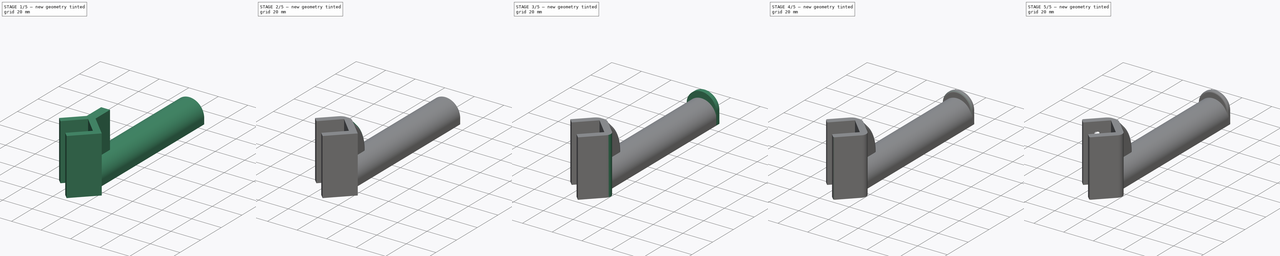
[diagram: build sequence overview — one tinted view per stage of 5, left to right]
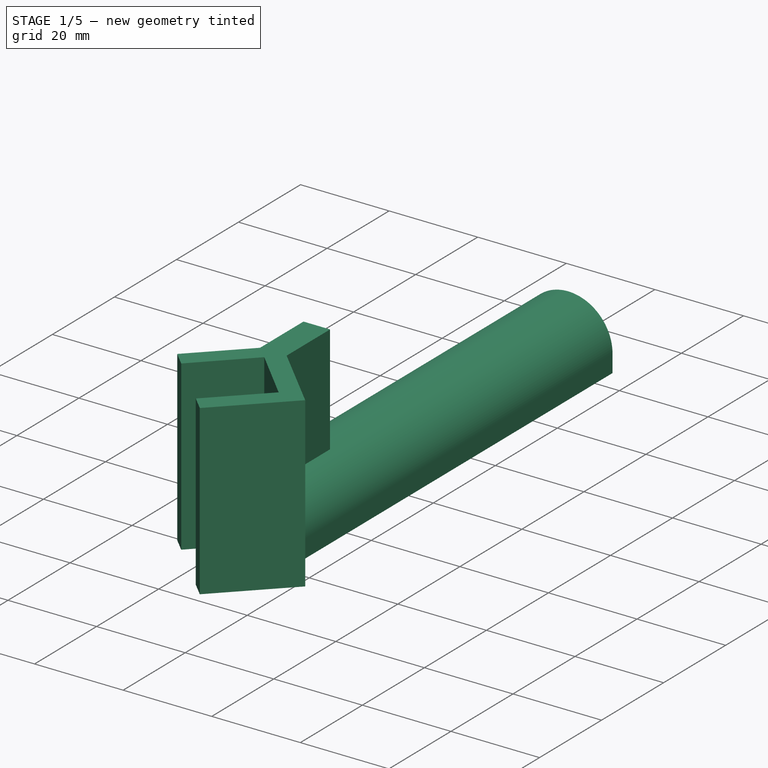
[diagram: stage 1 of 5 — iso view after this stage's code; geometry added in this stage tinted green]
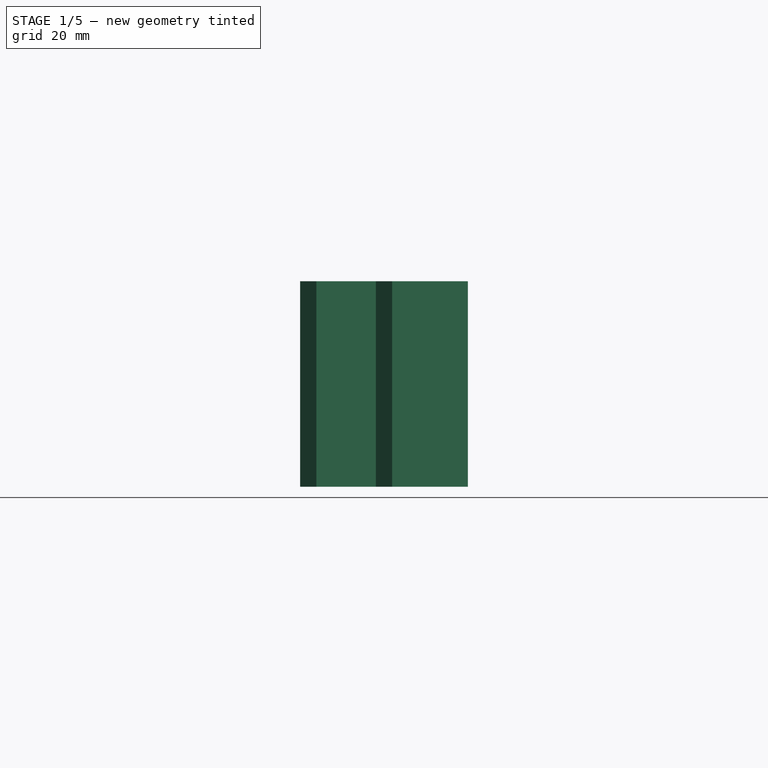
[diagram: stage 1 of 5 — front view after this stage's code; geometry added in this stage tinted green]
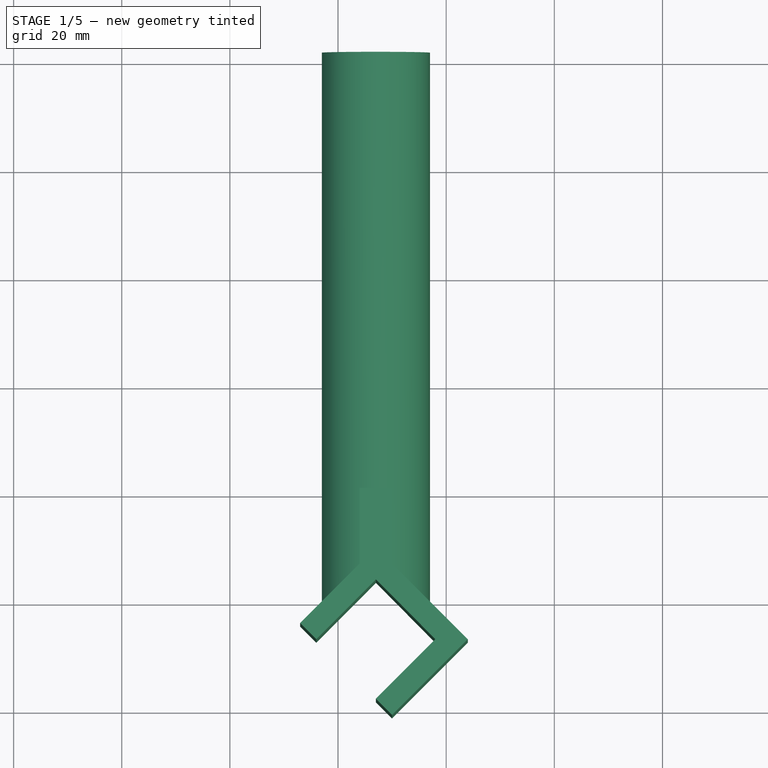
[diagram: stage 1 of 5 — top view after this stage's code; geometry added in this stage tinted green]
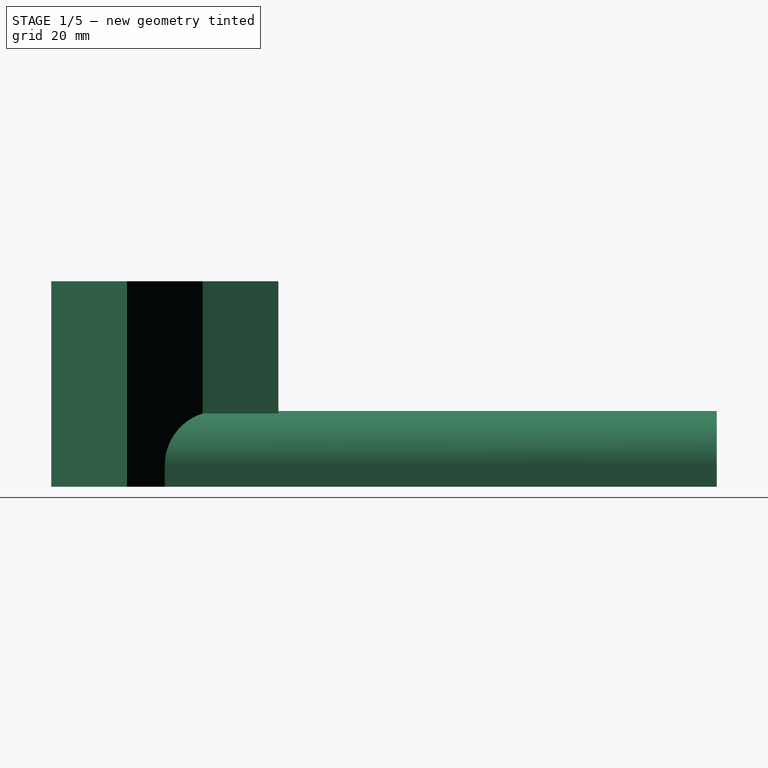
[diagram: stage 1 of 5 — right view after this stage's code; geometry added in this stage tinted green]
FCSTD DOCUMENT  (FreeCAD 0.15R4671 (Git))
Label: SpoolHanger
License: All rights reserved
LicenseURL: http://en.wikipedia.org/wiki/All_rights_reserved
objects: Sketcher::SketchObject×9, PartDesign::Fillet×7, PartDesign::Pocket×6, Part::Feature×3, PartDesign::Pad×2, PartDesign::Chamfer×1
note: 36 computed .brp shape members not serialized (recipe doc carries the construction recipe); baked Part::Feature solids carry a one-line shape summary decoded from their .brp

FEATURE [Part::Feature] Part__Feature  label="BottomCorner_Tall"
  shape: bbox 73 x 73 x 88 mm, 83 faces (baked)
FEATURE [Sketcher::SketchObject] Sketch
  sketch-geometry (11):
    g0: LineSegment StartX=18 StartY=-7 StartZ=0 EndX=7 EndY=4.07071 EndZ=0
    g1: LineSegment StartX=7 StartY=4.07071 StartZ=0 EndX=-4 EndY=-7 EndZ=0
    g2: LineSegment StartX=7 StartY=-18 StartZ=0 EndX=18 EndY=-7 EndZ=0
    g3: LineSegment StartX=-3 StartY=102.071 StartZ=0 EndX=17 EndY=102.071 EndZ=0
    g4: LineSegment StartX=17 StartY=102.071 StartZ=0 EndX=17 EndY=0 EndZ=0
    g5: LineSegment StartX=-3 StartY=0 StartZ=0 EndX=-3 EndY=102.071 EndZ=0
    g6: LineSegment StartX=17 StartY=0 StartZ=0 EndX=24 EndY=-7 EndZ=0
    g7: LineSegment StartX=24 StartY=-7 StartZ=0 EndX=10 EndY=-21 EndZ=0
    g8: LineSegment StartX=10 StartY=-21 StartZ=0 EndX=7 EndY=-18 EndZ=0
    g9: LineSegment StartX=-3 StartY=0 StartZ=0 EndX=-7 EndY=-4 EndZ=0
    g10: LineSegment StartX=-7 StartY=-4 StartZ=0 EndX=-4 EndY=-7 EndZ=0
  constraints (14):
    c: Coincident(g0,g1)
    c: Coincident(g2,g0)
    c: Coincident(g3,g4)
    c: Coincident(g5,g3)
    c: Horizontal(g3)
    c: Vertical(g4)
    c: Vertical(g5)
    c: DistanceX(g4,g5) = -20
    c: Coincident(g6,g7)
    c: Coincident(g7,g8)
    c: Coincident(g9,g10)
    c: Coincident(g4,g6)
    c: Coincident(g5,g9)
    c: DistanceY(g0,g3) = 98
FEATURE [PartDesign::Pad] Pad
  Length = 38
  Length2 = 100
  Sketch = -> Sketch
  Type = 0
FEATURE [Sketcher::SketchObject] Sketch001
  Placement = pos=(0,0,38) rot=(0,0,1;0rad)
  Support = -> Pad [Face13]
  sketch-geometry (10):
    g0: LineSegment StartX=-4 StartY=0 StartZ=0 EndX=-3 EndY=0 EndZ=0
    g1: LineSegment StartX=17 StartY=0 StartZ=0 EndX=18 EndY=0 EndZ=0
    g2: LineSegment StartX=18 StartY=0 StartZ=0 EndX=18 EndY=103 EndZ=0
    g3: LineSegment StartX=18 StartY=103 StartZ=0 EndX=-4 EndY=103 EndZ=0
    g4: LineSegment StartX=-4 StartY=103 StartZ=0 EndX=-4 EndY=0 EndZ=0
    g5: LineSegment StartX=4 StartY=7 StartZ=0 EndX=4 EndY=21 EndZ=0
    g6: LineSegment StartX=4 StartY=21 StartZ=0 EndX=10 EndY=21 EndZ=0
    g7: LineSegment StartX=10 StartY=21 StartZ=0 EndX=10 EndY=7 EndZ=0
    g8: LineSegment StartX=-3 StartY=0 StartZ=0 EndX=4 EndY=7 EndZ=0
    g9: LineSegment StartX=17 StartY=0 StartZ=0 EndX=10 EndY=7 EndZ=0
  constraints (7):
    c: Coincident(g1,g2)
    c: Coincident(g2,g3)
    c: Coincident(g3,g4)
    c: Coincident(g4,g0)
    c: Coincident(g6,g7)
    c: Coincident(g5,g8)
    c: Coincident(g7,g9)
FEATURE [PartDesign::Pocket] Pocket
  Length = 24
  Sketch = -> Sketch001
  Type = 0
FEATURE [PartDesign::Fillet] Fillet
  Base = -> Pocket [Edge3,Edge17]
  Radius = 9.99
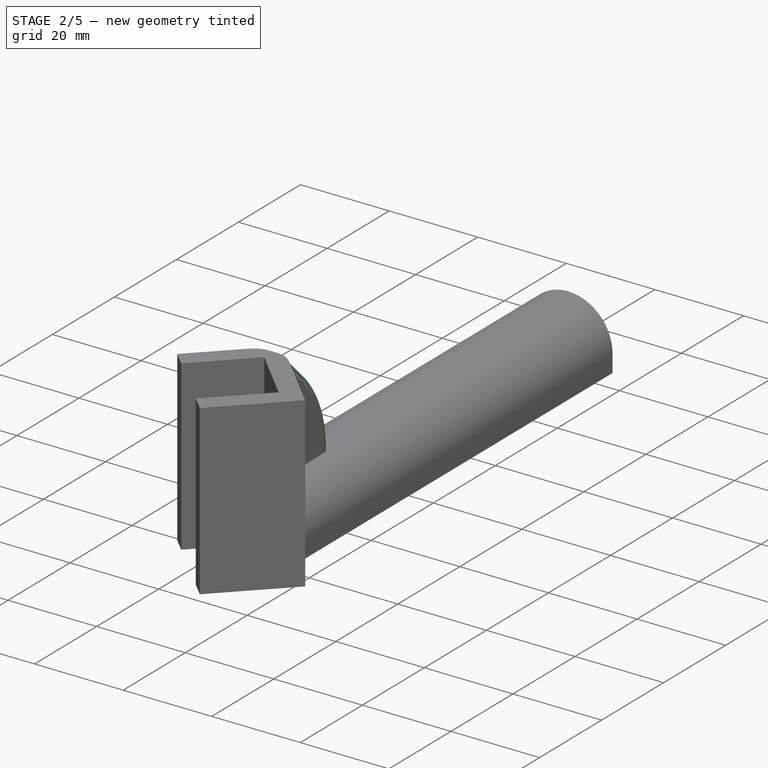
[diagram: stage 2 of 5 — iso view after this stage's code; geometry added in this stage tinted green]
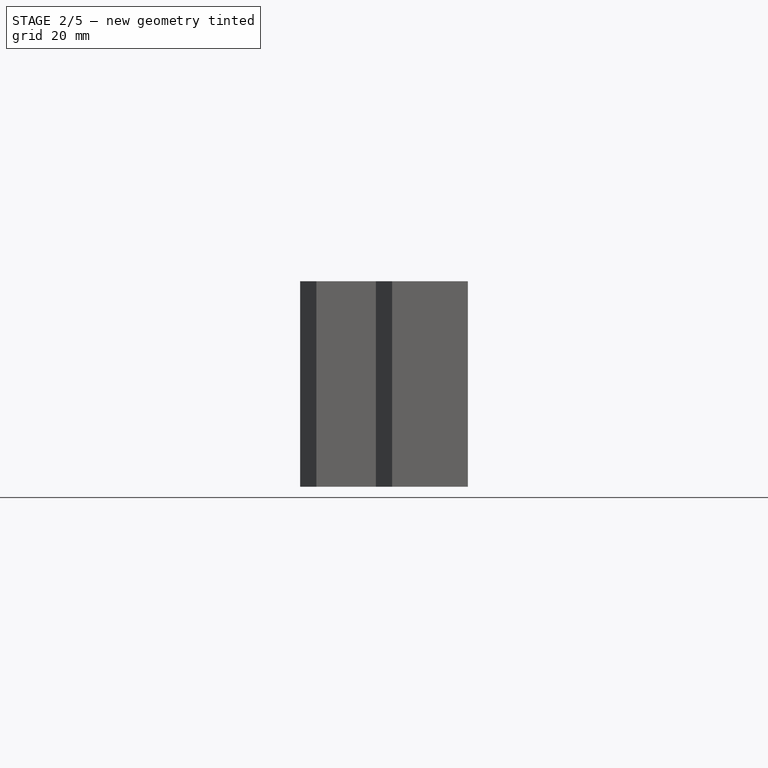
[diagram: stage 2 of 5 — front view after this stage's code; geometry added in this stage tinted green]
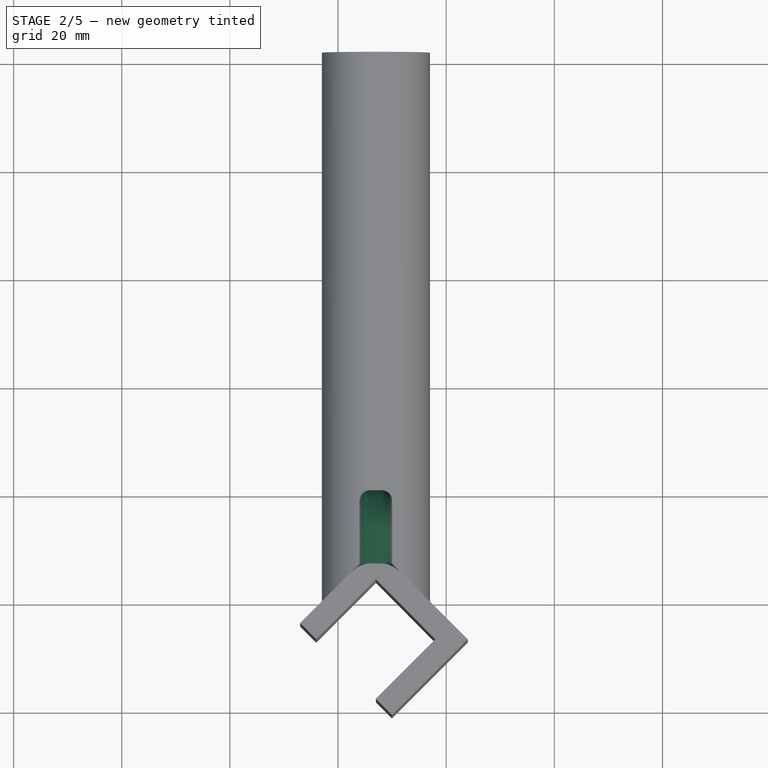
[diagram: stage 2 of 5 — top view after this stage's code; geometry added in this stage tinted green]
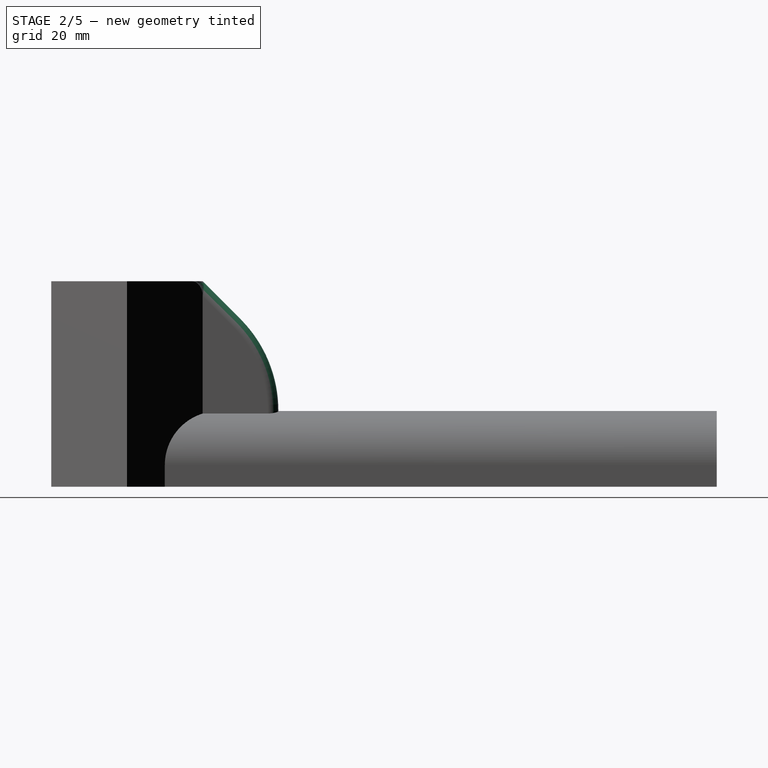
[diagram: stage 2 of 5 — right view after this stage's code; geometry added in this stage tinted green]
FEATURE [Sketcher::SketchObject] Sketch002
  Placement = pos=(4,0,0) rot=(0.57735,-0.57735,-0.57735;2.0944rad)
  Support = -> Fillet [Face9]
FEATURE [PartDesign::Chamfer] Chamfer
  Base = -> Fillet [Edge36]
  Size = 14
FEATURE [PartDesign::Fillet] Fillet001
  Base = -> Chamfer [Edge5]
  Radius = 24
FEATURE [PartDesign::Fillet] Fillet002
  Base = -> Fillet001 [Edge2,Edge12]
  Radius = 2
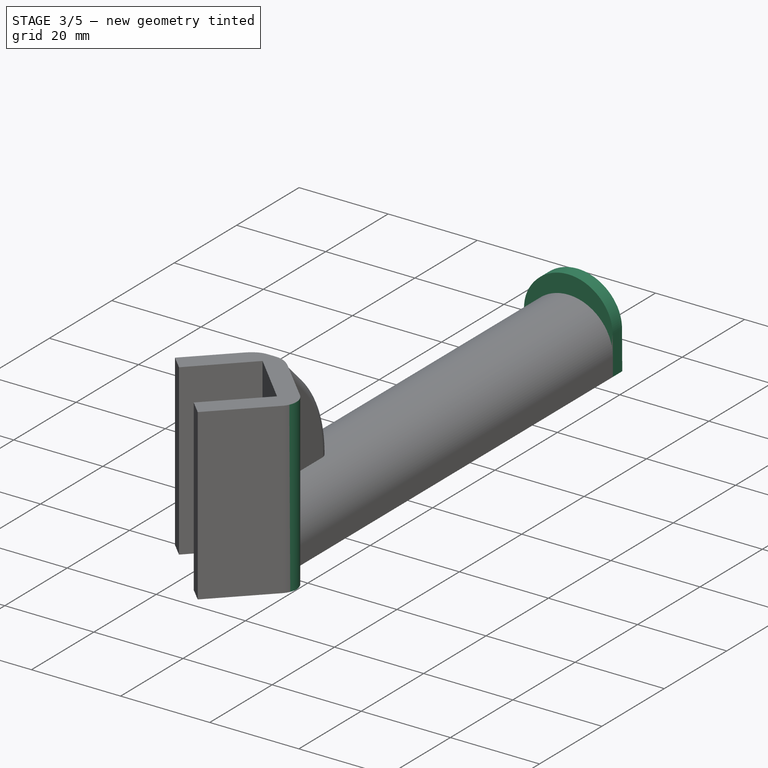
[diagram: stage 3 of 5 — iso view after this stage's code; geometry added in this stage tinted green]
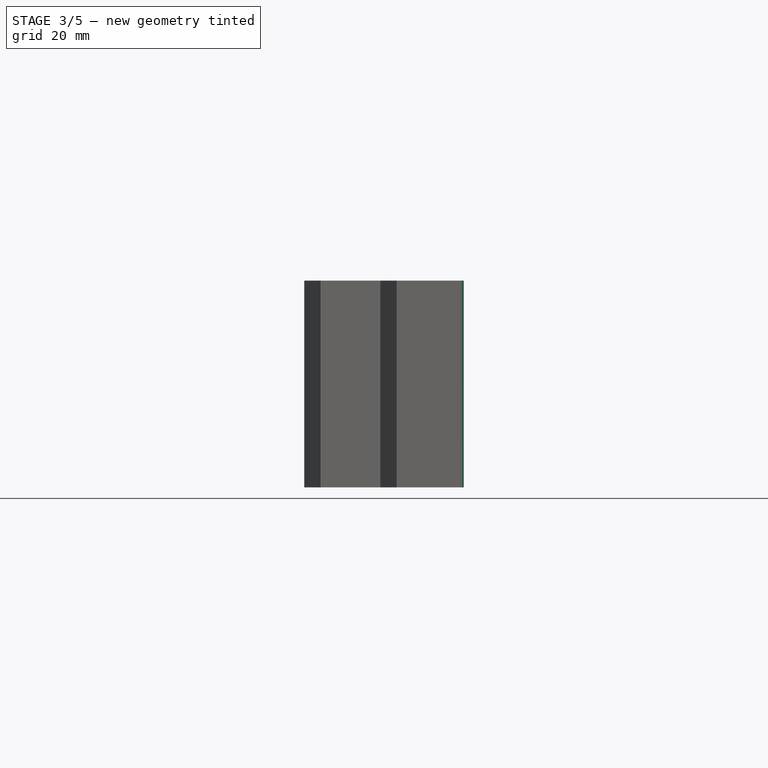
[diagram: stage 3 of 5 — front view after this stage's code; geometry added in this stage tinted green]
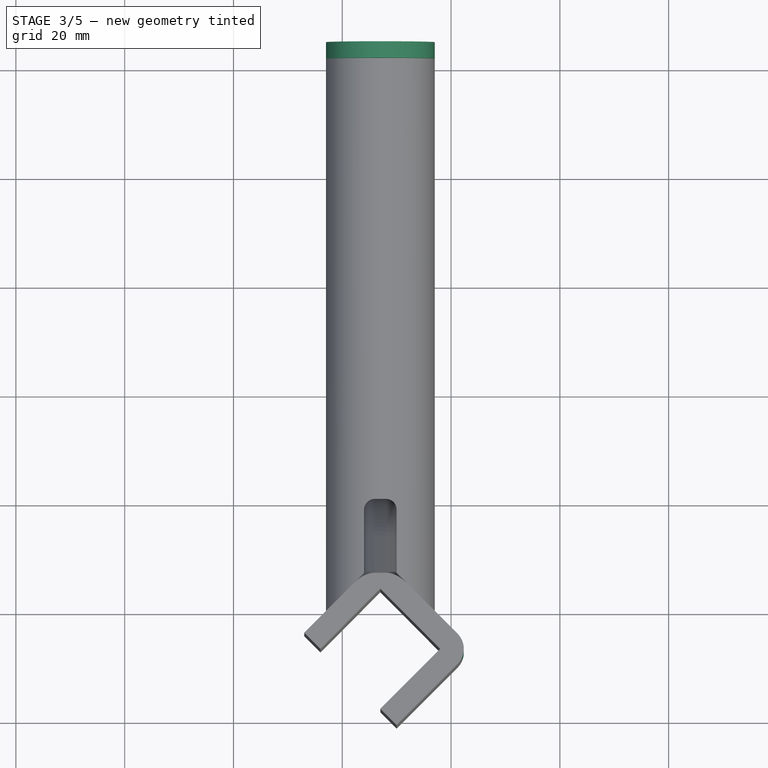
[diagram: stage 3 of 5 — top view after this stage's code; geometry added in this stage tinted green]
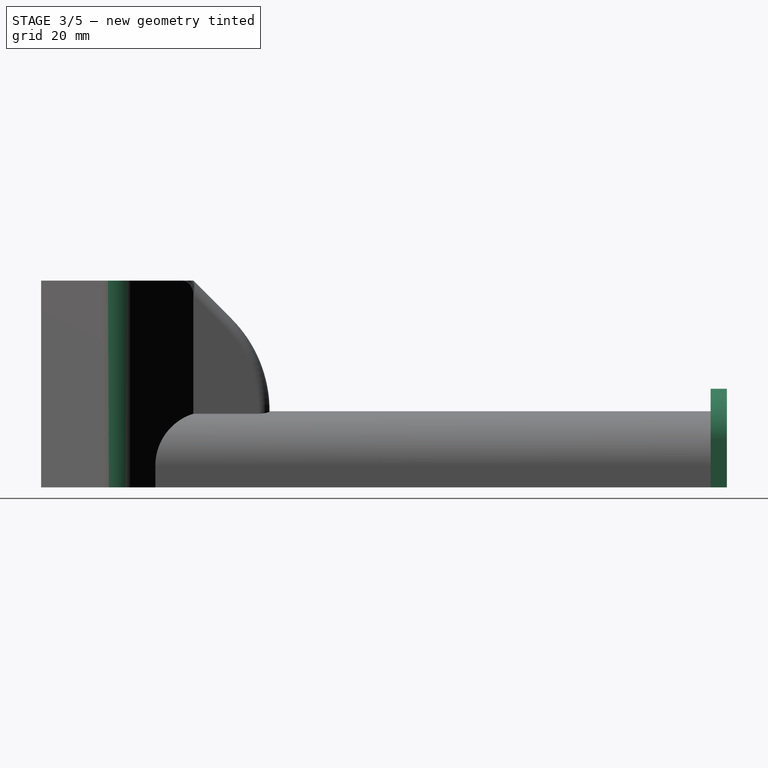
[diagram: stage 3 of 5 — right view after this stage's code; geometry added in this stage tinted green]
FEATURE [PartDesign::Fillet] Fillet003
  Base = -> Fillet002 [Edge68]
  Radius = 4
FEATURE [Sketcher::SketchObject] Sketch003
  Placement = pos=(0,102.071,0) rot=(0,0.707107,0.707107;3.14159rad)
  Support = -> Fillet003 [Face24]
  sketch-geometry (5):
    g0: LineSegment StartX=-14 StartY=-1 StartZ=0 EndX=0 EndY=-1 EndZ=0
    g1: LineSegment StartX=0 StartY=-1 StartZ=0 EndX=0 EndY=5 EndZ=0
    g2: LineSegment StartX=-14 StartY=5 StartZ=0 EndX=-14 EndY=-1 EndZ=0
    g3: LineSegment StartX=-14 StartY=5 StartZ=0 EndX=-7 EndY=12 EndZ=0
    g4: LineSegment StartX=-7 StartY=12 StartZ=0 EndX=0 EndY=5 EndZ=0
  constraints (8):
    c: Coincident(g0,g1)
    c: Coincident(g2,g0)
    c: Horizontal(g0)
    c: Vertical(g1)
    c: Vertical(g2)
    c: Coincident(g3,g4)
    c: Coincident(g1,g4)
    c: Coincident(g2,g3)
FEATURE [PartDesign::Pocket] Pocket001
  Length = 95
  Sketch = -> Sketch003
  Type = 0
FEATURE [Sketcher::SketchObject] Sketch004
  Placement = pos=(0,102.071,0) rot=(0,0.707107,0.707107;3.14159rad)
  Support = -> Pocket001 [Face24]
  sketch-geometry (4):
    g0: LineSegment StartX=-17 StartY=0 StartZ=0 EndX=3 EndY=0 EndZ=0
    g1: LineSegment StartX=3 StartY=0 StartZ=0 EndX=2.93648 EndY=9.96926 EndZ=0
    g2: LineSegment StartX=-17 StartY=0 StartZ=0 EndX=-16.9365 EndY=9.96926 EndZ=0
    g3: ArcOfCircle CenterX=-7 CenterY=8 CenterZ=0 NormalX=0 NormalY=0 NormalZ=1 Radius=10.1297 StartAngle=0.19565 EndAngle=2.94594
  constraints (4):
    c: Coincident(g0,g1)
    c: Coincident(g0,g2)
    c: Coincident(g2,g3)
    c: Coincident(g1,g3)
FEATURE [PartDesign::Pad] Pad001
  Length = 3
  Length2 = 100
  Sketch = -> Sketch004
  Type = 0
FEATURE [PartDesign::Fillet] Fillet004
  Base = -> Pad001 [Edge92,Edge87]
  Radius = 9
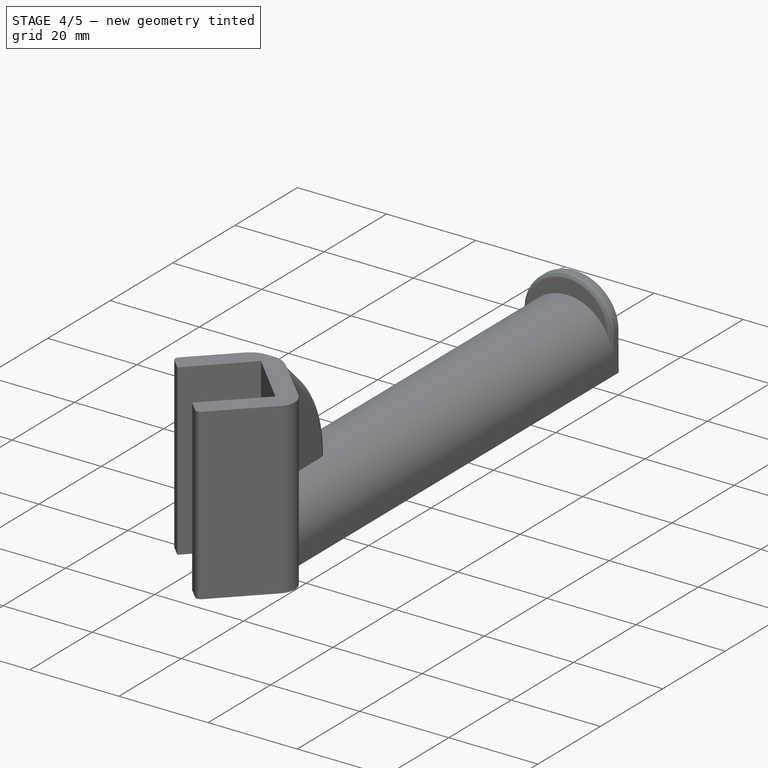
[diagram: stage 4 of 5 — iso view after this stage's code; geometry added in this stage tinted green]
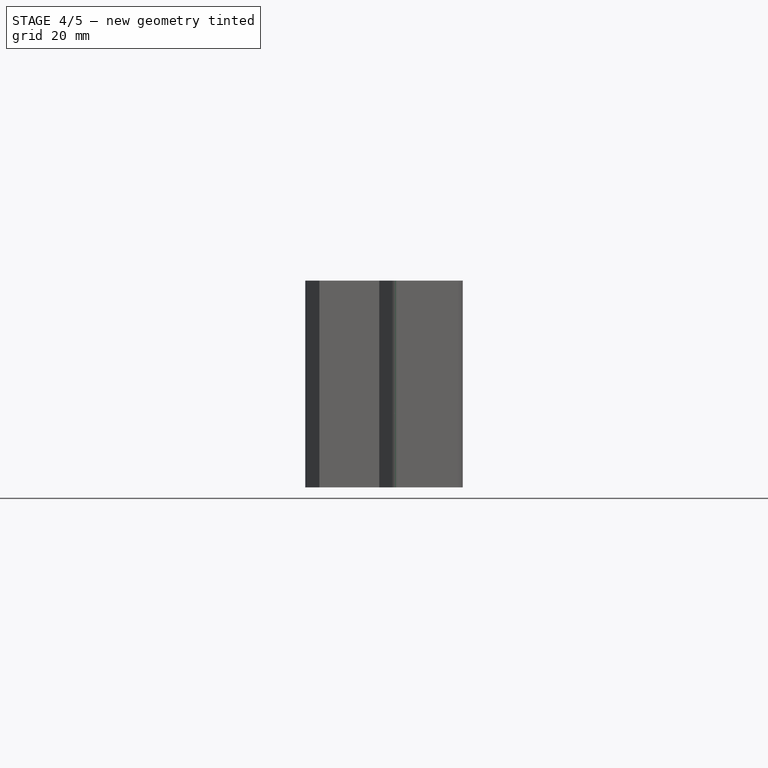
[diagram: stage 4 of 5 — front view after this stage's code; geometry added in this stage tinted green]
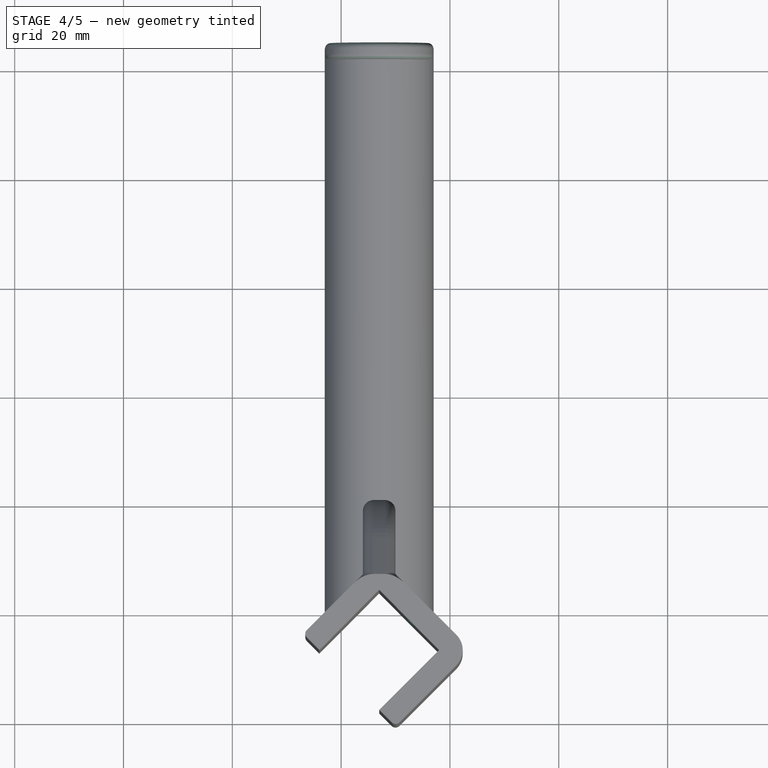
[diagram: stage 4 of 5 — top view after this stage's code; geometry added in this stage tinted green]
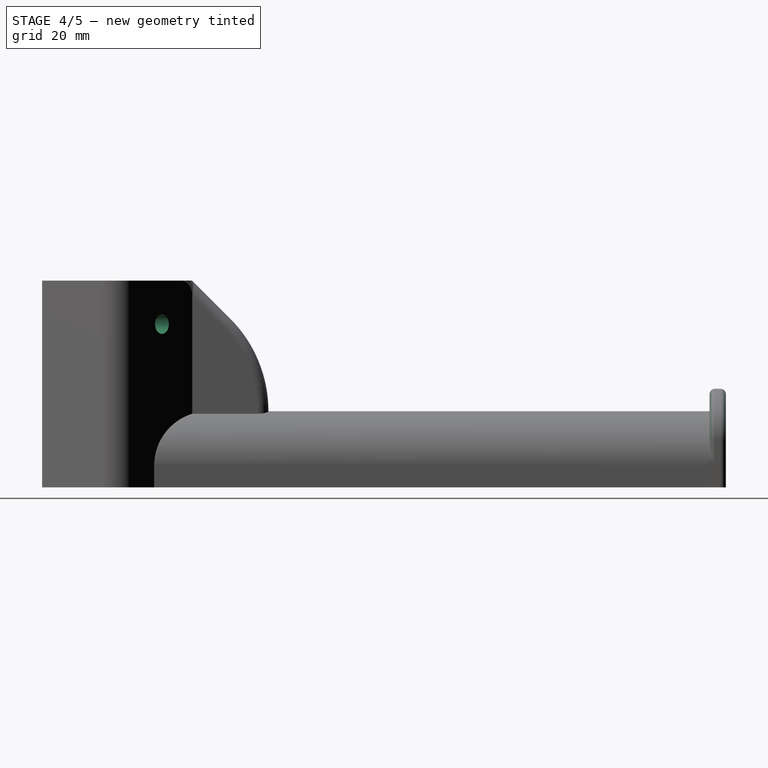
[diagram: stage 4 of 5 — right view after this stage's code; geometry added in this stage tinted green]
FEATURE [PartDesign::Fillet] Fillet005
  Base = -> Fillet004 [Edge4,Edge23]
  Radius = 1
FEATURE [PartDesign::Fillet] Fillet006
  Base = -> Fillet005 [Edge56,Edge126]
  Radius = 1
FEATURE [Sketcher::SketchObject] Sketch005
  Placement = pos=(8.5,8.5,0) rot=(0.281085,0.678598,0.678598;2.59356rad)
  Support = -> Fillet006 [Face13]
  sketch-geometry (1):
    g0: Circle CenterX=-10 CenterY=30 CenterZ=0 NormalX=0 NormalY=0 NormalZ=1 Radius=1.8
  constraints (1):
    c: Radius(g0) = 1.8
FEATURE [Part::Feature] Part__Feature001  label="OB1515_45mm"
  Placement = pos=(7,-7,1) rot=(0,0,1;0.785398rad)
  shape: bbox 21.01 x 21.01 x 45 mm, 158 faces (baked)
FEATURE [PartDesign::Pocket] Pocket002
  Length = 5
  Sketch = -> Sketch005
  Type = 0
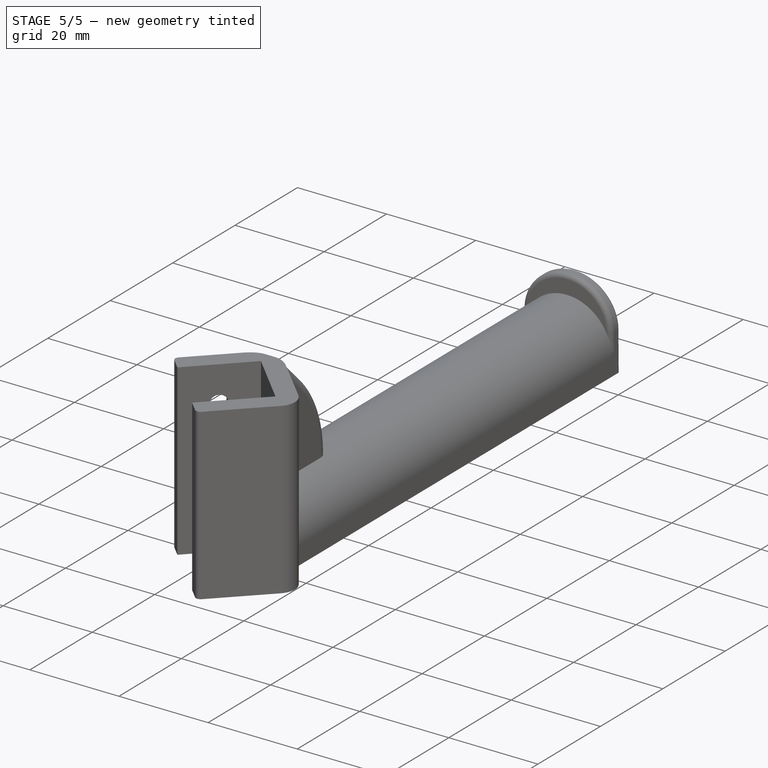
[diagram: stage 5 of 5 — iso view after this stage's code; geometry added in this stage tinted green]
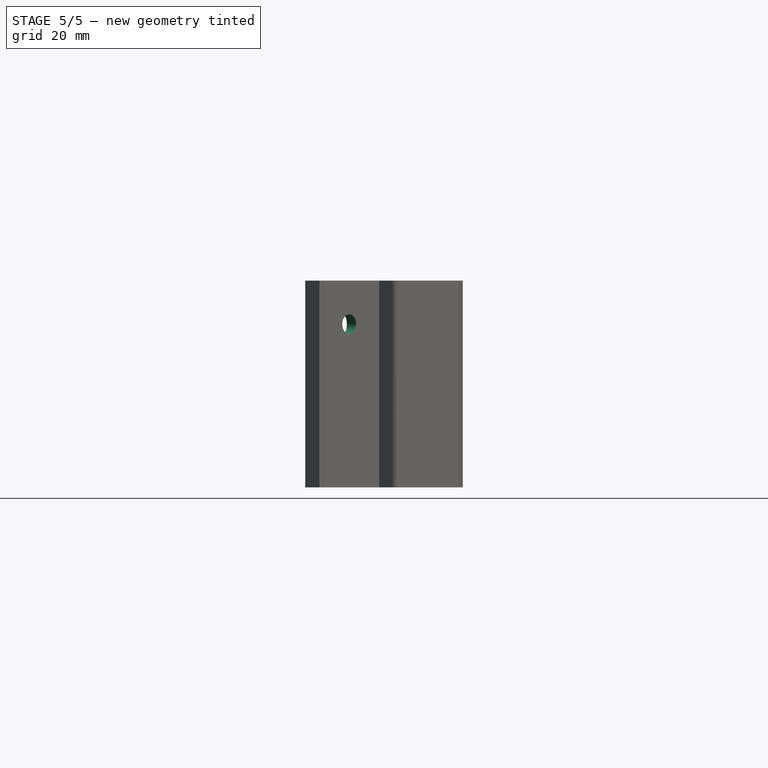
[diagram: stage 5 of 5 — front view after this stage's code; geometry added in this stage tinted green]
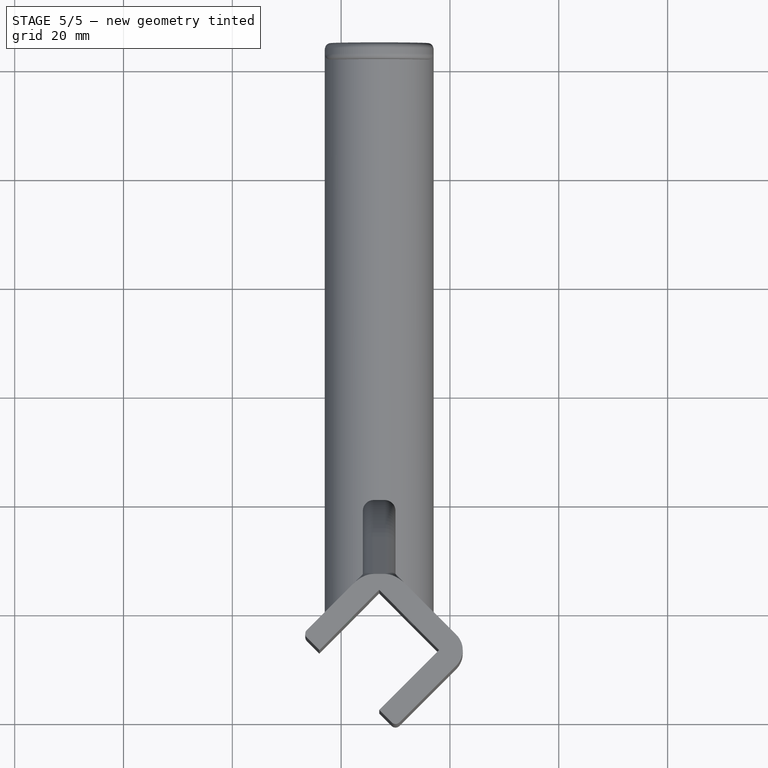
[diagram: stage 5 of 5 — top view after this stage's code; geometry added in this stage tinted green]
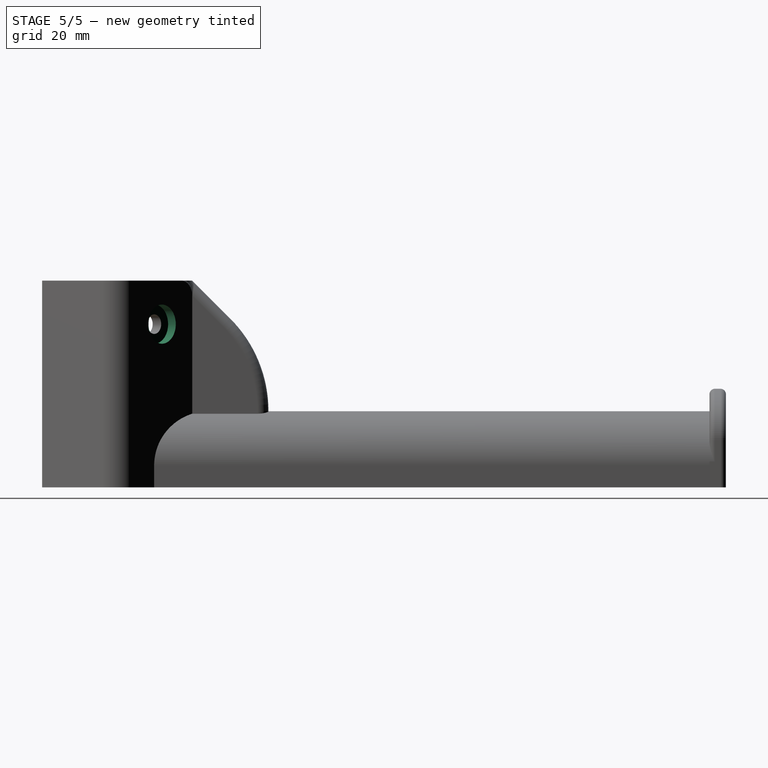
[diagram: stage 5 of 5 — right view after this stage's code; geometry added in this stage tinted green]
FEATURE [Sketcher::SketchObject] Sketch006
  Placement = pos=(8.5,8.5,0) rot=(0.281085,0.678598,0.678598;2.59356rad)
  Support = -> Pocket002 [Face13]
  sketch-geometry (1):
    g0: Circle CenterX=-10 CenterY=30 CenterZ=0 NormalX=0 NormalY=0 NormalZ=1 Radius=3.6
  constraints (1):
    c: Radius(g0) = 3.6
FEATURE [PartDesign::Pocket] Pocket003
  Length = 2
  Sketch = -> Sketch006
  Type = 0
FEATURE [Sketcher::SketchObject] Sketch007
  Placement = pos=(-1.5,1.5,0) rot=(-0.281085,0.678598,0.678598;3.68962rad)
  Support = -> Pocket003 [Face1]
  sketch-geometry (1):
    g0: Circle CenterX=0 CenterY=30 CenterZ=0 NormalX=0 NormalY=0 NormalZ=1 Radius=1.8
  constraints (1):
    c: Radius(g0) = 1.8
FEATURE [PartDesign::Pocket] Pocket004
  Length = 5
  Sketch = -> Sketch007
  Type = 0
FEATURE [Sketcher::SketchObject] Sketch008
  Placement = pos=(-1.5,1.5,0) rot=(-0.281085,0.678598,0.678598;3.68962rad)
  Support = -> Pocket004 [Face1]
  sketch-geometry (1):
    g0: Circle CenterX=0 CenterY=30 CenterZ=0 NormalX=0 NormalY=0 NormalZ=1 Radius=3.6
  constraints (1):
    c: Radius(g0) = 3.6
FEATURE [PartDesign::Pocket] Pocket005
  Length = 2
  Sketch = -> Sketch008
  Type = 0
FEATURE [Part::Feature] Pocket006  label="SpoolHanger"
  shape: bbox 29.29 x 126 x 40.66 mm, 62 faces (baked)
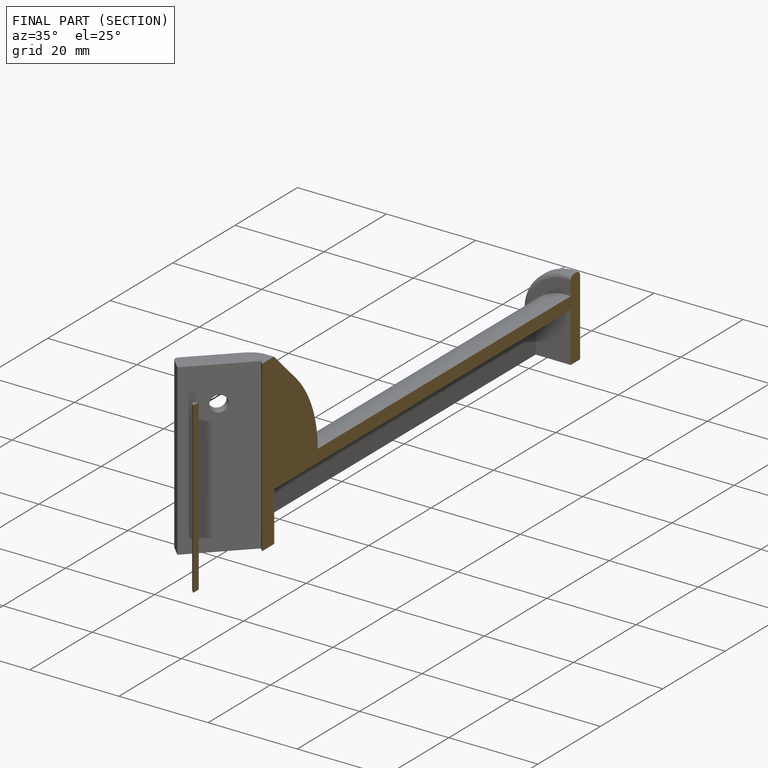
[diagram: finished part — half-section view (interior)]
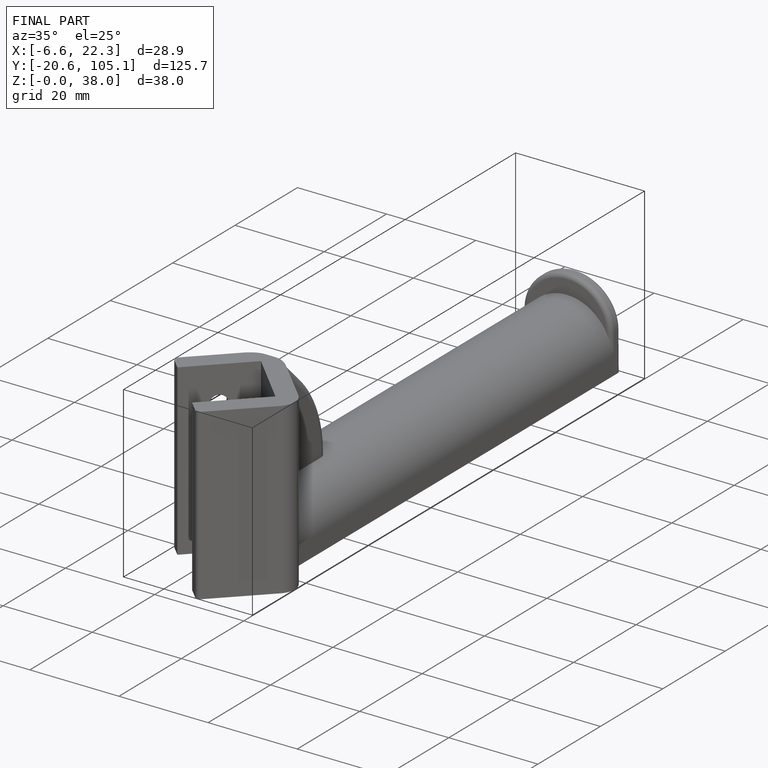
[diagram: finished part — iso view with bounding-box wireframe]
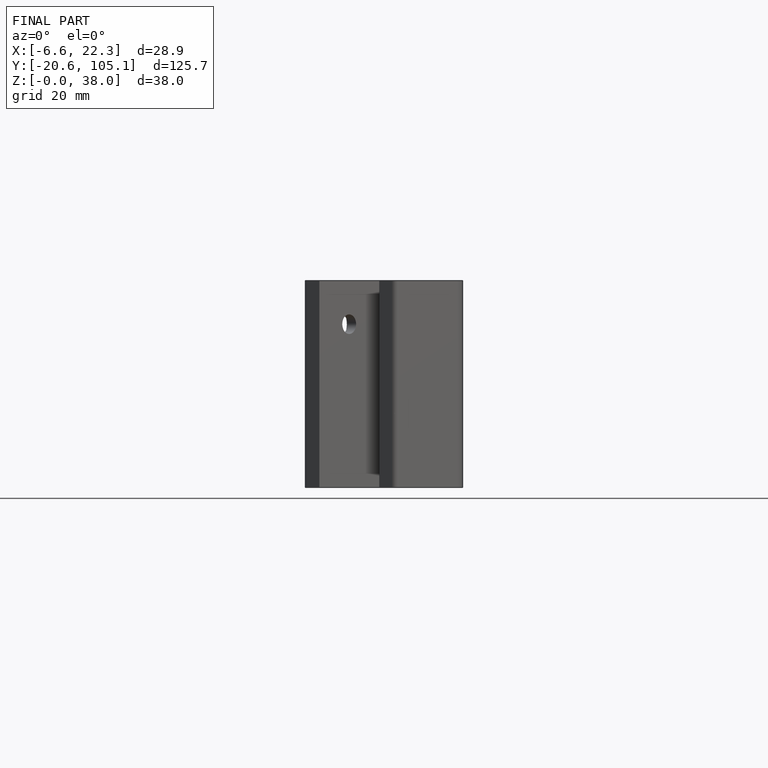
[diagram: finished part — front view with bounding-box wireframe]
